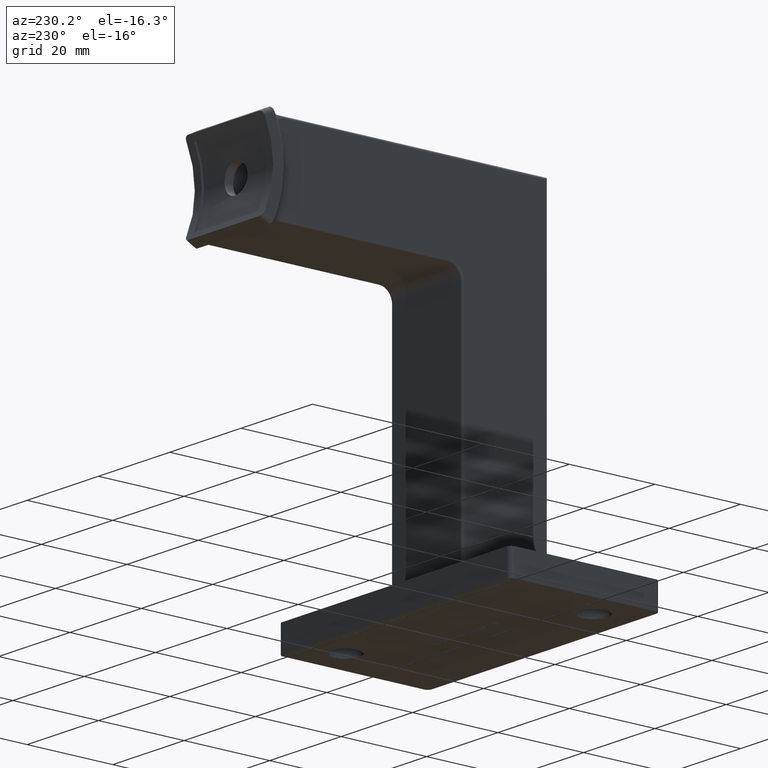
[diagram: clean part render]
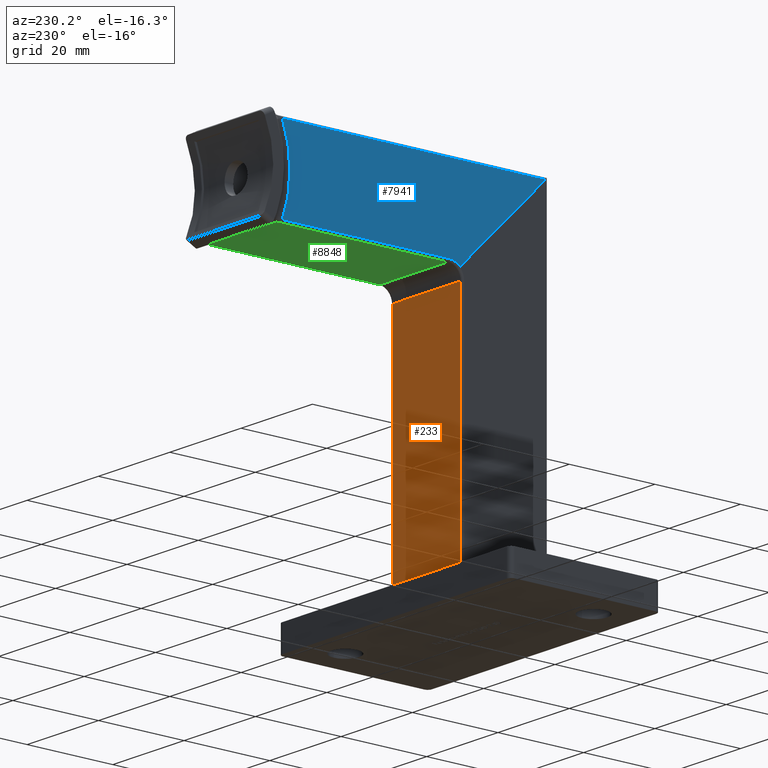
[diagram: same view with three faces highlighted in distinct colors, each labeled with its STEP entity id]
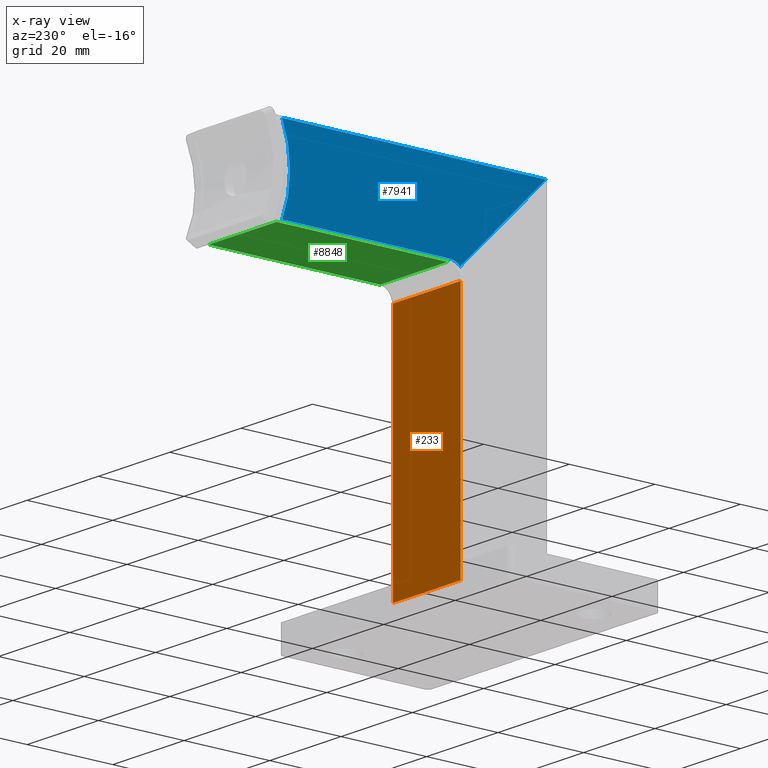
[diagram: x-ray of the same camera — body ghosted, the three highlighted faces saturated]
A machine part, auxiliary view with three faces highlighted in distinct colors.
The next image is the same camera in x-ray (body ghosted, the three faces saturated) — at least one of them is partly hidden behind the body in this view.
Their STEP definitions:

[orange] entity #233 — the highlighted planar face has unit normal (0, 1, 0).
#233 = ADVANCED_FACE ( 'NONE', ( #10681 ), #2866, .T. ) ;
#597 = DIRECTION ( 'NONE',  ( 0.000000000000000000, 1.000000000000000000, 1.224646799147353454E-16 ) ) ;
#2075 = EDGE_CURVE ( 'NONE', #3523, #8341, #5068, .T. ) ;
#2079 = VECTOR ( 'NONE', #11557, 1000.000000000000000 ) ;
#2250 = DIRECTION ( 'NONE',  ( 1.000000000000000000, -0.000000000000000000, 0.000000000000000000 ) ) ;
#2460 = EDGE_CURVE ( 'NONE', #4726, #11476, #13888, .T. ) ;
#2866 = PLANE ( 'NONE',  #9117 ) ;
#3268 = VECTOR ( 'NONE', #5458, 1000.000000000000000 ) ;
#3517 = CARTESIAN_POINT ( 'NONE',  ( 9.500000000000001776, 9.999999999999994671, 62.00000000000000711 ) ) ;
#3523 = VERTEX_POINT ( 'NONE', #3517 ) ;
#3566 = VECTOR ( 'NONE', #2250, 1000.000000000000000 ) ;
#3618 = VECTOR ( 'NONE', #7814, 1000.000000000000000 ) ;
#3975 = ORIENTED_EDGE ( 'NONE', *, *, #10398, .T. ) ;
#4623 = CARTESIAN_POINT ( 'NONE',  ( 10.00000000000000178, 9.999999999999994671, 62.00000000000000711 ) ) ;
#4726 = VERTEX_POINT ( 'NONE', #7726 ) ;
#5068 = LINE ( 'NONE', #14665, #3268 ) ;
#5458 = DIRECTION ( 'NONE',  ( 5.473822126268817899E-48, 1.224646799147353454E-16, -1.000000000000000000 ) ) ;
#5516 = CARTESIAN_POINT ( 'NONE',  ( -9.499999999999998224, 9.999999999999989342, 103.2842712474619020 ) ) ;
#5789 = CARTESIAN_POINT ( 'NONE',  ( 0.000000000000000000, 10.00000000000000178, 6.000000000000000000 ) ) ;
#6251 = LINE ( 'NONE', #5789, #3566 ) ;
#6439 = CARTESIAN_POINT ( 'NONE',  ( 10.00000000000000178, 9.999999999999989342, 103.2842712474619020 ) ) ;
#7093 = CARTESIAN_POINT ( 'NONE',  ( -9.499999999999998224, 9.999999999999994671, 62.00000000000000711 ) ) ;
#7726 = CARTESIAN_POINT ( 'NONE',  ( -9.499999999999998224, 10.00000000000000178, 6.000000000000000000 ) ) ;
#7814 = DIRECTION ( 'NONE',  ( -3.038581678643136274E-64, -1.224646799147353454E-16, 1.000000000000000000 ) ) ;
#8139 = EDGE_LOOP ( 'NONE', ( #3975, #10923, #10488, #13199 ) ) ;
#8341 = VERTEX_POINT ( 'NONE', #10082 ) ;
#8975 = LINE ( 'NONE', #4623, #2079 ) ;
#9117 = AXIS2_PLACEMENT_3D ( 'NONE', #6439, #597, #10912 ) ;
#9200 = EDGE_CURVE ( 'NONE', #4726, #8341, #6251, .T. ) ;
#10082 = CARTESIAN_POINT ( 'NONE',  ( 9.500000000000001776, 10.00000000000000178, 6.000000000000000000 ) ) ;
#10398 = EDGE_CURVE ( 'NONE', #11476, #3523, #8975, .T. ) ;
#10488 = ORIENTED_EDGE ( 'NONE', *, *, #9200, .F. ) ;
#10681 = FACE_OUTER_BOUND ( 'NONE', #8139, .T. ) ;
#10912 = DIRECTION ( 'NONE',  ( 0.000000000000000000, -1.224646799147353454E-16, 1.000000000000000000 ) ) ;
#10923 = ORIENTED_EDGE ( 'NONE', *, *, #2075, .T. ) ;
#11476 = VERTEX_POINT ( 'NONE', #7093 ) ;
#11557 = DIRECTION ( 'NONE',  ( 1.000000000000000000, 0.000000000000000000, -0.000000000000000000 ) ) ;
#13199 = ORIENTED_EDGE ( 'NONE', *, *, #2460, .T. ) ;
#13888 = LINE ( 'NONE', #5516, #3618 ) ;
#14665 = CARTESIAN_POINT ( 'NONE',  ( 9.500000000000001776, 9.999999999999989342, 103.2842712474619020 ) ) ;

[blue] entity #7941 — the highlighted planar face has unit normal (1, -0, 0).
#770 = DIRECTION ( 'NONE',  ( 1.000000000000000000, -0.000000000000000000, 1.734723475976807587E-16 ) ) ;
#824 = ORIENTED_EDGE ( 'NONE', *, *, #14234, .F. ) ;
#1095 = DIRECTION ( 'NONE',  ( 0.000000000000000000, 0.000000000000000000, -1.000000000000000000 ) ) ;
#1330 = CARTESIAN_POINT ( 'NONE',  ( -9.999999999999998224, 52.06642127380421670, 65.50000000000000000 ) ) ;
#1732 = CIRCLE ( 'NONE', #9519, 3.500000000000003109 ) ;
#1803 = CARTESIAN_POINT ( 'NONE',  ( -10.00000000000000178, -9.142135623730959892, 84.14213562373093680 ) ) ;
#1834 = VECTOR ( 'NONE', #3108, 1000.000000000000000 ) ;
#2295 = VERTEX_POINT ( 'NONE', #9659 ) ;
#2330 = CIRCLE ( 'NONE', #13995, 25.93606797749978199 ) ;
#2603 = CARTESIAN_POINT ( 'NONE',  ( -9.999999999999998224, 12.99999999999999467, 65.50000000000000000 ) ) ;
#2863 = EDGE_CURVE ( 'NONE', #14027, #5861, #2330, .T. ) ;
#3108 = DIRECTION ( 'NONE',  ( 1.226634733346699310E-16, 0.7071067811865475727, -0.7071067811865474617 ) ) ;
#3174 = CARTESIAN_POINT ( 'NONE',  ( -10.00000000000000178, -9.142135623730959892, 84.49999999999998579 ) ) ;
#3813 = CARTESIAN_POINT ( 'NONE',  ( -10.00000000000000178, 52.06642127380421670, 84.49999999999998579 ) ) ;
#4046 = DIRECTION ( 'NONE',  ( 1.734723475976807587E-16, 0.000000000000000000, -1.000000000000000000 ) ) ;
#5271 = EDGE_CURVE ( 'NONE', #2295, #14027, #10078, .T. ) ;
#5861 = VERTEX_POINT ( 'NONE', #1330 ) ;
#6495 = DIRECTION ( 'NONE',  ( 0.000000000000000000, 1.000000000000000000, 0.000000000000000000 ) ) ;
#6612 = ORIENTED_EDGE ( 'NONE', *, *, #7292, .T. ) ;
#6918 = AXIS2_PLACEMENT_3D ( 'NONE', #1803, #770, #4046 ) ;
#7292 = EDGE_CURVE ( 'NONE', #13975, #11224, #1732, .T. ) ;
#7308 = ORIENTED_EDGE ( 'NONE', *, *, #8661, .T. ) ;
#7941 = ADVANCED_FACE ( 'NONE', ( #9891 ), #12146, .F. ) ;
#8003 = ORIENTED_EDGE ( 'NONE', *, *, #2863, .T. ) ;
#8065 = DIRECTION ( 'NONE',  ( 1.000000000000000000, -0.000000000000000000, 1.734723475976807587E-16 ) ) ;
#8661 = EDGE_CURVE ( 'NONE', #5861, #13975, #12755, .T. ) ;
#9369 = EDGE_LOOP ( 'NONE', ( #10160, #8003, #7308, #6612, #824 ) ) ;
#9519 = AXIS2_PLACEMENT_3D ( 'NONE', #10362, #8065, #1095 ) ;
#9659 = CARTESIAN_POINT ( 'NONE',  ( -10.00000000000000178, -9.500000000000005329, 84.49999999999997158 ) ) ;
#9711 = VECTOR ( 'NONE', #14576, 1000.000000000000000 ) ;
#9891 = FACE_OUTER_BOUND ( 'NONE', #9369, .T. ) ;
#9973 = CARTESIAN_POINT ( 'NONE',  ( -9.999999999999998224, -9.142135623730959892, 65.50000000000000000 ) ) ;
#10078 = LINE ( 'NONE', #3174, #12207 ) ;
#10114 = CARTESIAN_POINT ( 'NONE',  ( -10.00000000000000178, -9.142135623730959892, 84.14213562373093680 ) ) ;
#10160 = ORIENTED_EDGE ( 'NONE', *, *, #5271, .T. ) ;
#10362 = CARTESIAN_POINT ( 'NONE',  ( -9.999999999999998224, 12.99999999999999467, 62.00000000000000711 ) ) ;
#11224 = VERTEX_POINT ( 'NONE', #12364 ) ;
#12146 = PLANE ( 'NONE',  #6918 ) ;
#12207 = VECTOR ( 'NONE', #6495, 1000.000000000000000 ) ;
#12299 = CARTESIAN_POINT ( 'NONE',  ( -10.00000000000000000, 76.20000000000000284, 75.00000000000000000 ) ) ;
#12364 = CARTESIAN_POINT ( 'NONE',  ( -9.999999999999998224, 10.52512626584706368, 64.47487373415292211 ) ) ;
#12394 = DIRECTION ( 'NONE',  ( 1.000000000000000000, -0.000000000000000000, 1.734723475976807587E-16 ) ) ;
#12755 = LINE ( 'NONE', #9973, #9711 ) ;
#13554 = DIRECTION ( 'NONE',  ( 2.006537934911789759E-16, 0.000000000000000000, -1.000000000000000000 ) ) ;
#13975 = VERTEX_POINT ( 'NONE', #2603 ) ;
#13995 = AXIS2_PLACEMENT_3D ( 'NONE', #12299, #12394, #13554 ) ;
#14027 = VERTEX_POINT ( 'NONE', #3813 ) ;
#14234 = EDGE_CURVE ( 'NONE', #2295, #11224, #14981, .T. ) ;
#14576 = DIRECTION ( 'NONE',  ( -0.000000000000000000, -1.000000000000000000, -0.000000000000000000 ) ) ;
#14981 = LINE ( 'NONE', #10114, #1834 ) ;

[green] entity #8848 — the highlighted planar face has unit normal (0, 0, 1).
#316 = PLANE ( 'NONE',  #13266 ) ;
#455 = CARTESIAN_POINT ( 'NONE',  ( -9.499999999999998224, 52.97131427244341495, 65.00000000000000000 ) ) ;
#566 = VECTOR ( 'NONE', #8243, 1000.000000000000000 ) ;
#1103 = VECTOR ( 'NONE', #12951, 1000.000000000000000 ) ;
#1343 = VERTEX_POINT ( 'NONE', #3951 ) ;
#1547 = CARTESIAN_POINT ( 'NONE',  ( -9.499999999999998224, 9.999999999999994671, 65.00000000000000000 ) ) ;
#2510 = CARTESIAN_POINT ( 'NONE',  ( 10.00000000000000178, 12.99999999999999467, 65.00000000000000000 ) ) ;
#3939 = DIRECTION ( 'NONE',  ( 0.000000000000000000, 0.000000000000000000, 1.000000000000000000 ) ) ;
#3951 = CARTESIAN_POINT ( 'NONE',  ( 9.500000000000001776, 52.97131427244341495, 65.00000000000000000 ) ) ;
#4195 = CARTESIAN_POINT ( 'NONE',  ( 9.500000000000001776, 12.99999999999999467, 65.00000000000000000 ) ) ;
#4910 = CARTESIAN_POINT ( 'NONE',  ( 10.00000000000000178, 52.97131427244341495, 65.00000000000000000 ) ) ;
#6016 = LINE ( 'NONE', #4910, #566 ) ;
#6296 = ORIENTED_EDGE ( 'NONE', *, *, #9543, .T. ) ;
#6742 = DIRECTION ( 'NONE',  ( -0.000000000000000000, -1.000000000000000000, -0.000000000000000000 ) ) ;
#7296 = LINE ( 'NONE', #1547, #1103 ) ;
#7306 = DIRECTION ( 'NONE',  ( -1.000000000000000000, -0.000000000000000000, 0.000000000000000000 ) ) ;
#7837 = VERTEX_POINT ( 'NONE', #4195 ) ;
#8057 = ORIENTED_EDGE ( 'NONE', *, *, #13965, .T. ) ;
#8187 = ORIENTED_EDGE ( 'NONE', *, *, #11102, .T. ) ;
#8243 = DIRECTION ( 'NONE',  ( 1.000000000000000000, -0.000000000000000000, -0.000000000000000000 ) ) ;
#8848 = ADVANCED_FACE ( 'NONE', ( #13486 ), #316, .F. ) ;
#8988 = LINE ( 'NONE', #10035, #14725 ) ;
#9358 = EDGE_LOOP ( 'NONE', ( #8057, #11512, #6296, #8187 ) ) ;
#9543 = EDGE_CURVE ( 'NONE', #1343, #7837, #8988, .T. ) ;
#9594 = DIRECTION ( 'NONE',  ( 1.000000000000000000, 0.000000000000000000, -0.000000000000000000 ) ) ;
#10035 = CARTESIAN_POINT ( 'NONE',  ( 9.500000000000001776, 9.999999999999994671, 65.00000000000000000 ) ) ;
#10385 = VECTOR ( 'NONE', #7306, 1000.000000000000000 ) ;
#10839 = CARTESIAN_POINT ( 'NONE',  ( 10.00000000000000178, 9.999999999999994671, 65.00000000000000000 ) ) ;
#11065 = CARTESIAN_POINT ( 'NONE',  ( -9.499999999999998224, 12.99999999999999467, 65.00000000000000000 ) ) ;
#11102 = EDGE_CURVE ( 'NONE', #7837, #12220, #13238, .T. ) ;
#11512 = ORIENTED_EDGE ( 'NONE', *, *, #13067, .T. ) ;
#12220 = VERTEX_POINT ( 'NONE', #11065 ) ;
#12951 = DIRECTION ( 'NONE',  ( 0.000000000000000000, 1.000000000000000000, -0.000000000000000000 ) ) ;
#13067 = EDGE_CURVE ( 'NONE', #14395, #1343, #6016, .T. ) ;
#13238 = LINE ( 'NONE', #2510, #10385 ) ;
#13266 = AXIS2_PLACEMENT_3D ( 'NONE', #10839, #3939, #9594 ) ;
#13486 = FACE_OUTER_BOUND ( 'NONE', #9358, .T. ) ;
#13965 = EDGE_CURVE ( 'NONE', #12220, #14395, #7296, .T. ) ;
#14395 = VERTEX_POINT ( 'NONE', #455 ) ;
#14725 = VECTOR ( 'NONE', #6742, 1000.000000000000000 ) ;